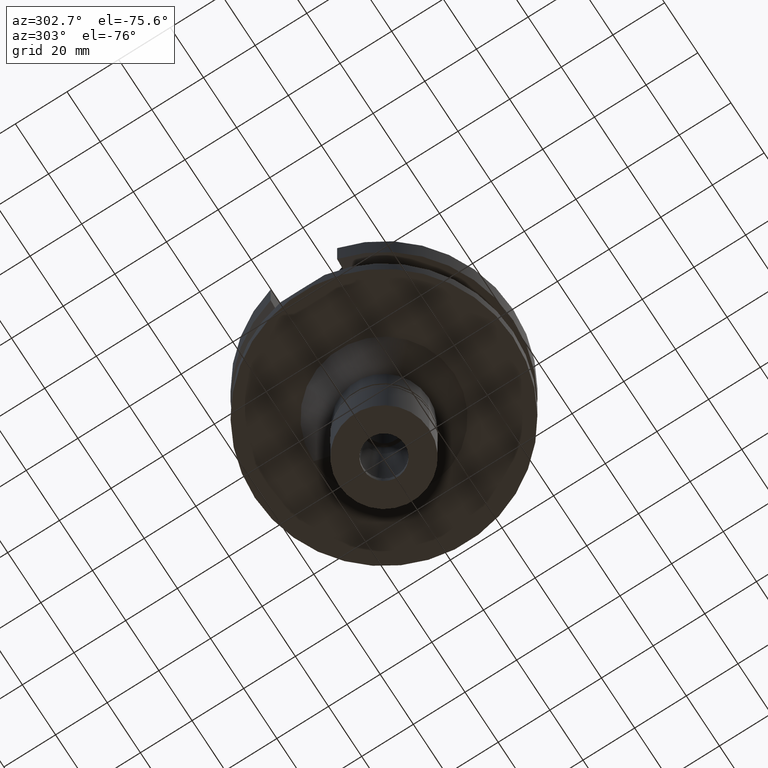
[diagram: clean part render]
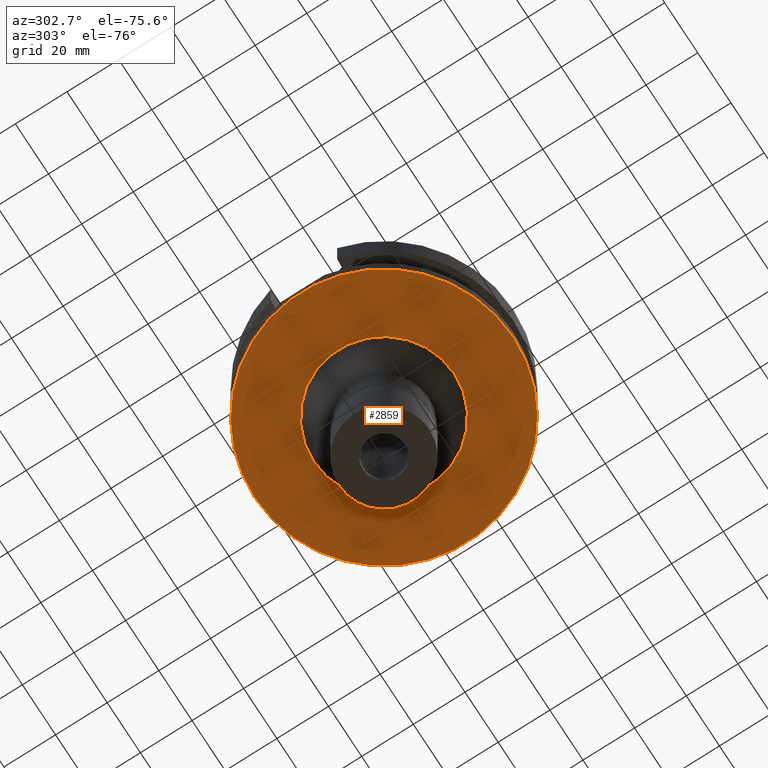
[diagram: same view with one face highlighted and labeled with its STEP entity id]
A machine part, auxiliary view. The second image highlights one B-rep face of the part: STEP entity #2859.
In plain terms, the highlighted planar face has unit normal (0, 0, -1).
Its self-contained STEP definition (entity closure, byte-faithful):
#118 = CIRCLE ( 'NONE', #1747, 27.25000000000000000 ) ;
#172 = VERTEX_POINT ( 'NONE', #1208 ) ;
#186 = AXIS2_PLACEMENT_3D ( 'NONE', #880, #2087, #2307 ) ;
#404 = ORIENTED_EDGE ( 'NONE', *, *, #931, .F. ) ;
#423 = CARTESIAN_POINT ( 'NONE',  ( 0.0000000000000000000, 2.582045311321999724E-14, -38.00000000000000000 ) ) ;
#524 = CARTESIAN_POINT ( 'NONE',  ( 0.0000000000000000000, 50.00000000000000000, -38.00000000000000000 ) ) ;
#563 = CARTESIAN_POINT ( 'NONE',  ( 0.0000000000000000000, 0.0000000000000000000, -38.00000000000000000 ) ) ;
#626 = EDGE_CURVE ( 'NONE', #1823, #1649, #118, .T. ) ;
#770 = EDGE_LOOP ( 'NONE', ( #404, #2893 ) ) ;
#815 = DIRECTION ( 'NONE',  ( 0.0000000000000000000, -1.000000000000000000, 0.0000000000000000000 ) ) ;
#830 = DIRECTION ( 'NONE',  ( 0.0000000000000000000, 1.000000000000000000, 0.0000000000000000000 ) ) ;
#880 = CARTESIAN_POINT ( 'NONE',  ( 0.0000000000000000000, 2.582045311321999724E-14, -38.00000000000000000 ) ) ;
#885 = DIRECTION ( 'NONE',  ( 0.0000000000000000000, -1.000000000000000000, 0.0000000000000000000 ) ) ;
#931 = EDGE_CURVE ( 'NONE', #1649, #1823, #1946, .T. ) ;
#1106 = CARTESIAN_POINT ( 'NONE',  ( 0.0000000000000000000, 0.0000000000000000000, -38.00000000000000000 ) ) ;
#1119 = PLANE ( 'NONE',  #2550 ) ;
#1120 = CARTESIAN_POINT ( 'NONE',  ( 0.0000000000000000000, -27.25000000000000000, -38.00000000000000000 ) ) ;
#1208 = CARTESIAN_POINT ( 'NONE',  ( 0.0000000000000000000, -50.00000000000000000, -38.00000000000000000 ) ) ;
#1233 = VERTEX_POINT ( 'NONE', #524 ) ;
#1360 = AXIS2_PLACEMENT_3D ( 'NONE', #423, #3004, #830 ) ;
#1467 = CIRCLE ( 'NONE', #186, 50.00000000000000000 ) ;
#1538 = DIRECTION ( 'NONE',  ( 0.0000000000000000000, 0.0000000000000000000, -1.000000000000000000 ) ) ;
#1566 = FACE_BOUND ( 'NONE', #770, .T. ) ;
#1649 = VERTEX_POINT ( 'NONE', #2420 ) ;
#1691 = EDGE_LOOP ( 'NONE', ( #2251, #3032 ) ) ;
#1747 = AXIS2_PLACEMENT_3D ( 'NONE', #563, #2966, #815 ) ;
#1798 = AXIS2_PLACEMENT_3D ( 'NONE', #2465, #1538, #2506 ) ;
#1823 = VERTEX_POINT ( 'NONE', #1120 ) ;
#1946 = CIRCLE ( 'NONE', #1798, 27.25000000000000000 ) ;
#2087 = DIRECTION ( 'NONE',  ( 0.0000000000000000000, 0.0000000000000000000, 1.000000000000000000 ) ) ;
#2175 = CIRCLE ( 'NONE', #1360, 50.00000000000000000 ) ;
#2251 = ORIENTED_EDGE ( 'NONE', *, *, #2953, .F. ) ;
#2307 = DIRECTION ( 'NONE',  ( 0.0000000000000000000, -1.000000000000000000, 0.0000000000000000000 ) ) ;
#2330 = EDGE_CURVE ( 'NONE', #172, #1233, #1467, .T. ) ;
#2420 = CARTESIAN_POINT ( 'NONE',  ( 0.0000000000000000000, 27.25000000000000000, -38.00000000000000000 ) ) ;
#2465 = CARTESIAN_POINT ( 'NONE',  ( 0.0000000000000000000, 0.0000000000000000000, -38.00000000000000000 ) ) ;
#2506 = DIRECTION ( 'NONE',  ( 0.0000000000000000000, 1.000000000000000000, 0.0000000000000000000 ) ) ;
#2550 = AXIS2_PLACEMENT_3D ( 'NONE', #1106, #2774, #885 ) ;
#2774 = DIRECTION ( 'NONE',  ( 0.0000000000000000000, 0.0000000000000000000, -1.000000000000000000 ) ) ;
#2859 = ADVANCED_FACE ( 'NONE', ( #3028, #1566 ), #1119, .T. ) ;
#2893 = ORIENTED_EDGE ( 'NONE', *, *, #626, .F. ) ;
#2953 = EDGE_CURVE ( 'NONE', #1233, #172, #2175, .T. ) ;
#2966 = DIRECTION ( 'NONE',  ( 0.0000000000000000000, 0.0000000000000000000, -1.000000000000000000 ) ) ;
#3004 = DIRECTION ( 'NONE',  ( 0.0000000000000000000, 0.0000000000000000000, 1.000000000000000000 ) ) ;
#3028 = FACE_OUTER_BOUND ( 'NONE', #1691, .T. ) ;
#3032 = ORIENTED_EDGE ( 'NONE', *, *, #2330, .F. ) ;